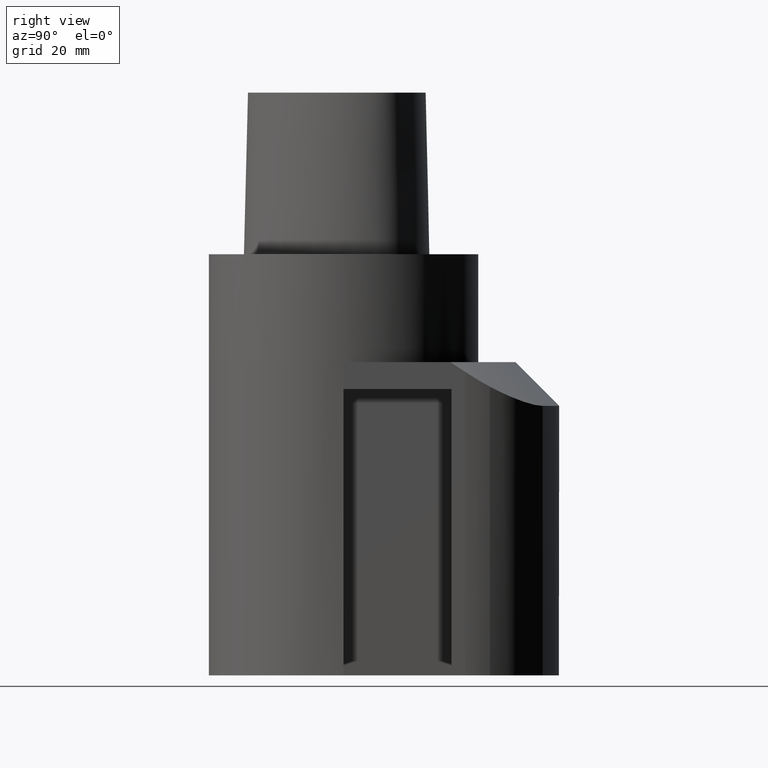
[diagram: clean part render]
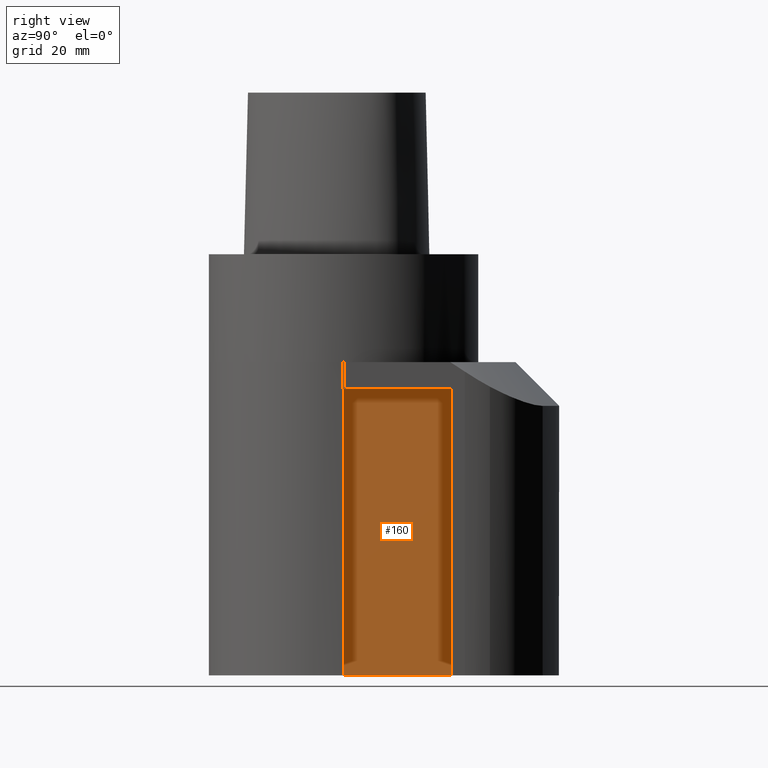
[diagram: same view with one face highlighted and labeled with its STEP entity id]
A machine part, right view. The second image highlights one B-rep face of the part: STEP entity #160.
In plain terms, the highlighted planar face has unit normal (1, -0, 0).
Its self-contained STEP definition (entity closure, byte-faithful):
#103=EDGE_CURVE('240[2]',#301,#302,#303,.T.);
#160=ADVANCED_FACE('240[2]',(#390),#391,.T.);
#170=EDGE_CURVE('240[2]',#402,#403,#404,.T.);
#191=EDGE_CURVE('240[2]',#301,#402,#432,.T.);
#263=EDGE_CURVE('240[2]',#403,#302,#520,.T.);
#301=VERTEX_POINT('',#553);
#302=VERTEX_POINT('',#554);
#303=LINE('',#555,#556);
#390=FACE_OUTER_BOUND('',#849,.T.);
#391=PLANE('',#850);
#402=VERTEX_POINT('',#869);
#403=VERTEX_POINT('',#870);
#404=LINE('',#871,#872);
#432=LINE('',#954,#955);
#520=LINE('',#1477,#1478);
#553=CARTESIAN_POINT('',(8.00000000000062,4.54747350886464E-013,-125.000000000003));
#554=CARTESIAN_POINT('',(8.00000000000062,4.54747350886464E-013,-40.0000000000027));
#555=CARTESIAN_POINT('',(8.00000000000061,4.54747350886464E-013,-125.000000000003));
#556=VECTOR('',#1620,85.0000000000003);
#849=EDGE_LOOP('',(#1704,#1705,#1706,#1707));
#850=AXIS2_PLACEMENT_3D('',#1708,#1709,#1710);
#869=CARTESIAN_POINT('',(8.00000000000107,32.0000000000071,-125.000000000003));
#870=CARTESIAN_POINT('',(8.00000000000108,32.0000000000071,-40.0000000000027));
#871=CARTESIAN_POINT('',(8.00000000000107,32.0000000000071,-125.000000000003));
#872=VECTOR('',#1717,85.0000000000003);
#954=CARTESIAN_POINT('',(8.00000000000096,4.54747350886464E-013,-125.000000000003));
#955=VECTOR('',#1732,32.0000000000067);
#1477=CARTESIAN_POINT('',(8.00000000000062,32.0000000000071,-40.0000000000027));
#1478=VECTOR('',#1855,32.0000000000067);
#1620=DIRECTION('',(0.0,0.0,1.0));
#1704=ORIENTED_EDGE('',*,*,#191,.T.);
#1705=ORIENTED_EDGE('',*,*,#170,.T.);
#1706=ORIENTED_EDGE('',*,*,#263,.T.);
#1707=ORIENTED_EDGE('',*,*,#103,.F.);
#1708=CARTESIAN_POINT('',(8.00000000000084,16.0000000000038,-236.187916822743));
#1709=DIRECTION('',(1.0,-0.0,0.0));
#1710=DIRECTION('',(0.0,1.0,0.0));
#1717=DIRECTION('',(0.0,0.0,1.0));
#1732=DIRECTION('',(0.0,1.0,0.0));
#1855=DIRECTION('',(0.0,-1.0,0.0));